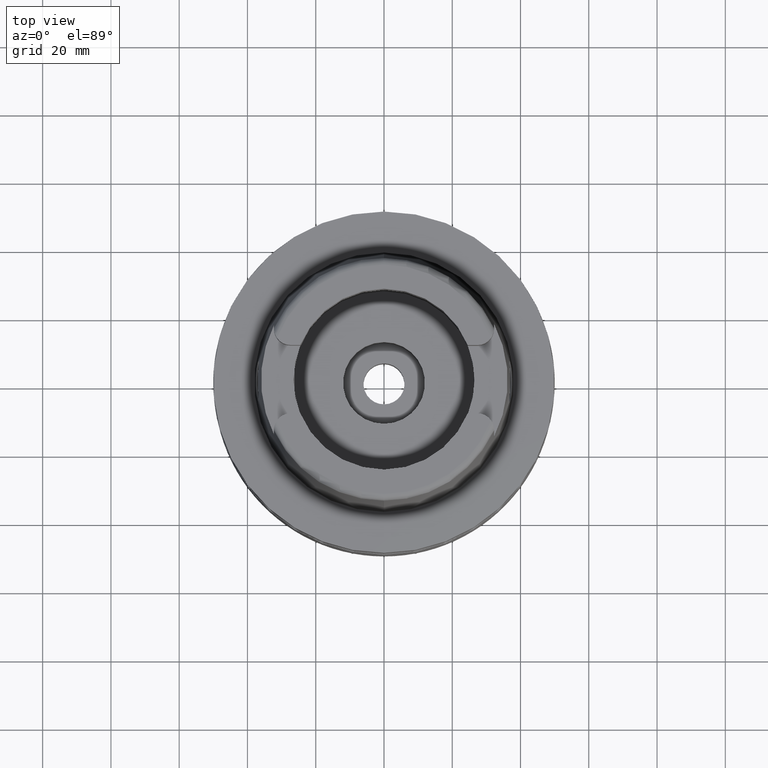
[diagram: clean part render]
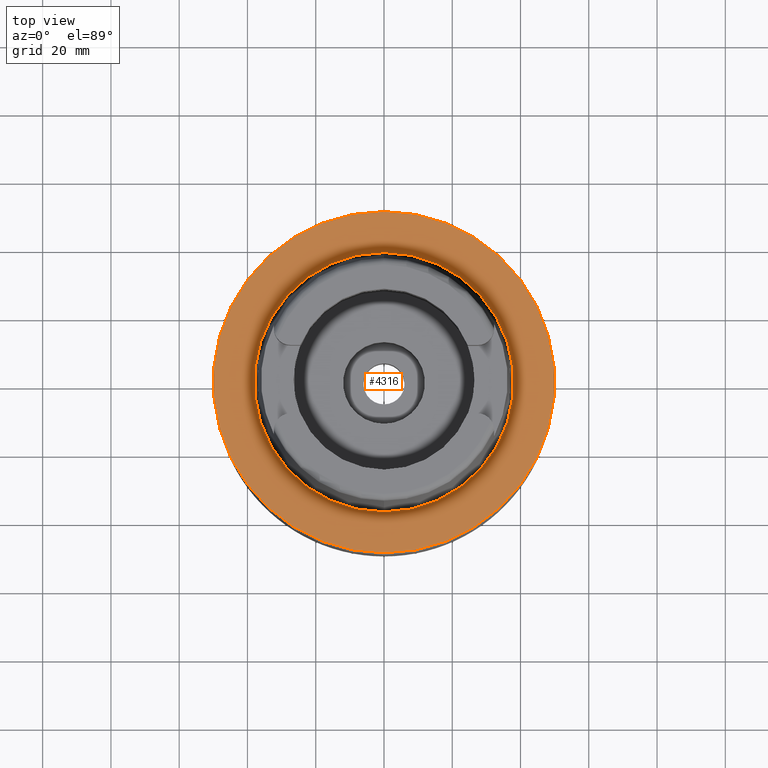
[diagram: same view with one face highlighted and labeled with its STEP entity id]
A machine part, top view. The second image highlights one B-rep face of the part: STEP entity #4316.
In plain terms, the highlighted planar face has unit normal (0, 0, -1).
Its self-contained STEP definition (entity closure, byte-faithful):
#2032=CARTESIAN_POINT('',(0.E0,1.935554266052E-14,-1.705302565824E-13));
#2033=DIRECTION('',(0.E0,0.E0,-1.E0));
#2034=DIRECTION('',(0.E0,-1.E0,0.E0));
#2035=AXIS2_PLACEMENT_3D('',#2032,#2033,#2034);
#2040=CARTESIAN_POINT('',(0.E0,1.935554266052E-14,-1.705302565824E-13));
#2041=DIRECTION('',(0.E0,0.E0,-1.E0));
#2042=DIRECTION('',(0.E0,1.E0,0.E0));
#2043=AXIS2_PLACEMENT_3D('',#2040,#2041,#2042);
#2048=CARTESIAN_POINT('',(0.E0,1.519173610602E-14,9.094947017729E-13));
#2049=DIRECTION('',(0.E0,0.E0,1.E0));
#2050=DIRECTION('',(0.E0,-1.E0,0.E0));
#2051=AXIS2_PLACEMENT_3D('',#2048,#2049,#2050);
#2056=CARTESIAN_POINT('',(0.E0,1.519173610602E-14,9.094947017729E-13));
#2057=DIRECTION('',(0.E0,0.E0,1.E0));
#2058=DIRECTION('',(0.E0,1.E0,0.E0));
#2059=AXIS2_PLACEMENT_3D('',#2056,#2057,#2058);
#2520=CARTESIAN_POINT('',(0.E0,-3.800001658252E1,2.344791028008E-13));
#2521=VERTEX_POINT('',#2520);
#2522=CARTESIAN_POINT('',(0.E0,3.800001658252E1,9.094947017729E-13));
#2523=VERTEX_POINT('',#2522);
#2785=CARTESIAN_POINT('',(0.E0,5.E1,-9.000207986295E-14));
#2786=VERTEX_POINT('',#2785);
#2787=CARTESIAN_POINT('',(0.E0,-5.E1,-1.705302565824E-13));
#2788=VERTEX_POINT('',#2787);
#4303=CARTESIAN_POINT('',(0.E0,1.224646799147E-14,1.421085471520E-14));
#4304=DIRECTION('',(0.E0,0.E0,-1.E0));
#4305=DIRECTION('',(0.E0,-1.E0,0.E0));
#4306=AXIS2_PLACEMENT_3D('',#4303,#4304,#4305);
#4307=PLANE('',#4306);
#4308=ORIENTED_EDGE('',*,*,#4068,.T.);
#4309=ORIENTED_EDGE('',*,*,#4177,.T.);
#4310=EDGE_LOOP('',(#4308,#4309));
#4311=FACE_OUTER_BOUND('',#4310,.F.);
#4312=ORIENTED_EDGE('',*,*,#3044,.T.);
#4313=ORIENTED_EDGE('',*,*,#3015,.T.);
#4314=EDGE_LOOP('',(#4312,#4313));
#4315=FACE_BOUND('',#4314,.F.);
#2036=CIRCLE('',#2035,5.E1);
#2044=CIRCLE('',#2043,5.E1);
#2052=CIRCLE('',#2051,3.800001658252E1);
#2060=CIRCLE('',#2059,3.800001658252E1);
#3015=EDGE_CURVE('',#2523,#2521,#2060,.T.);
#3044=EDGE_CURVE('',#2521,#2523,#2052,.T.);
#4068=EDGE_CURVE('',#2788,#2786,#2036,.T.);
#4177=EDGE_CURVE('',#2786,#2788,#2044,.T.);
#4316=ADVANCED_FACE('',(#4311,#4315),#4307,.F.);